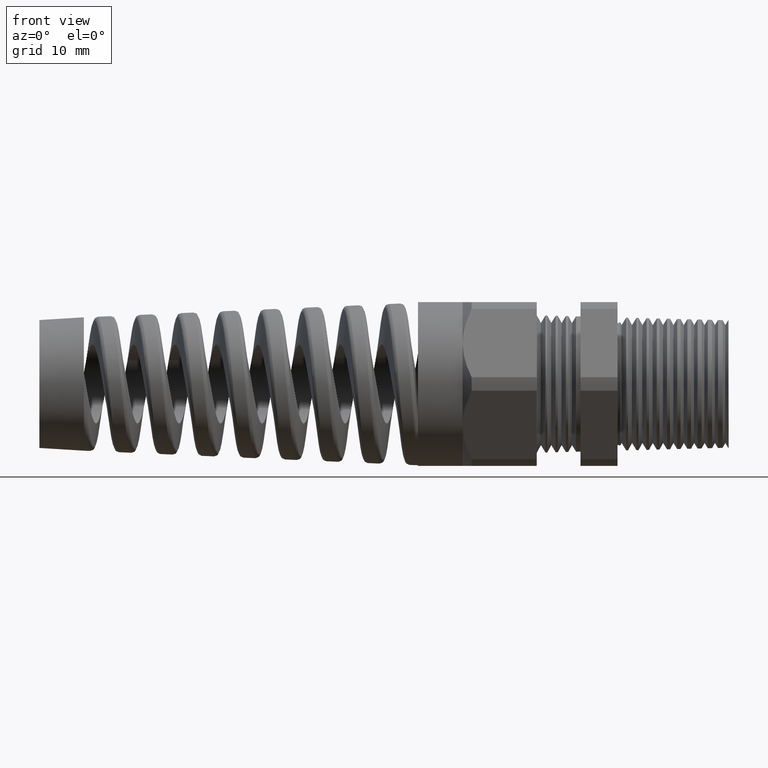
[diagram: clean part render]
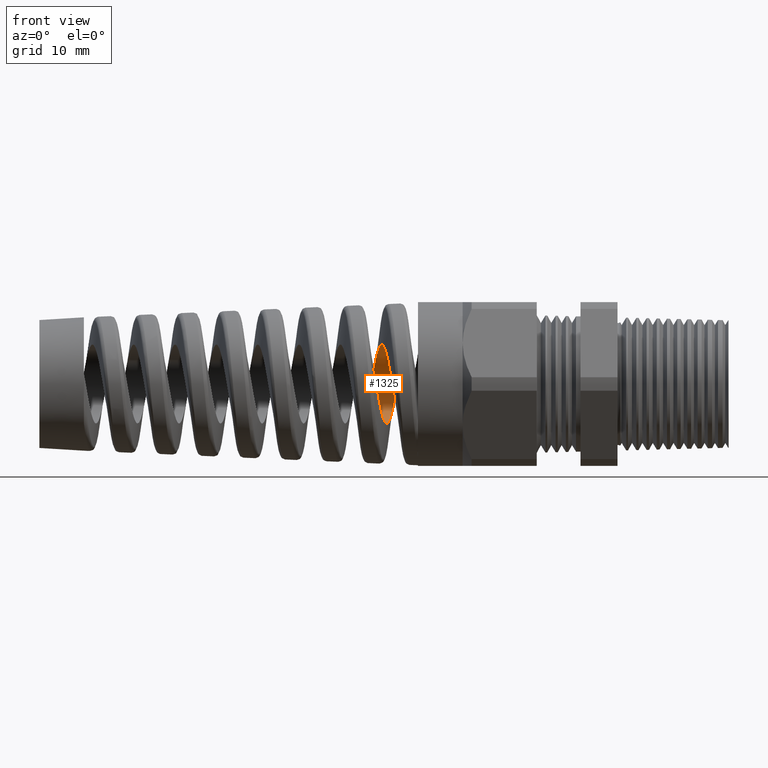
[diagram: same view with one face highlighted and labeled with its STEP entity id]
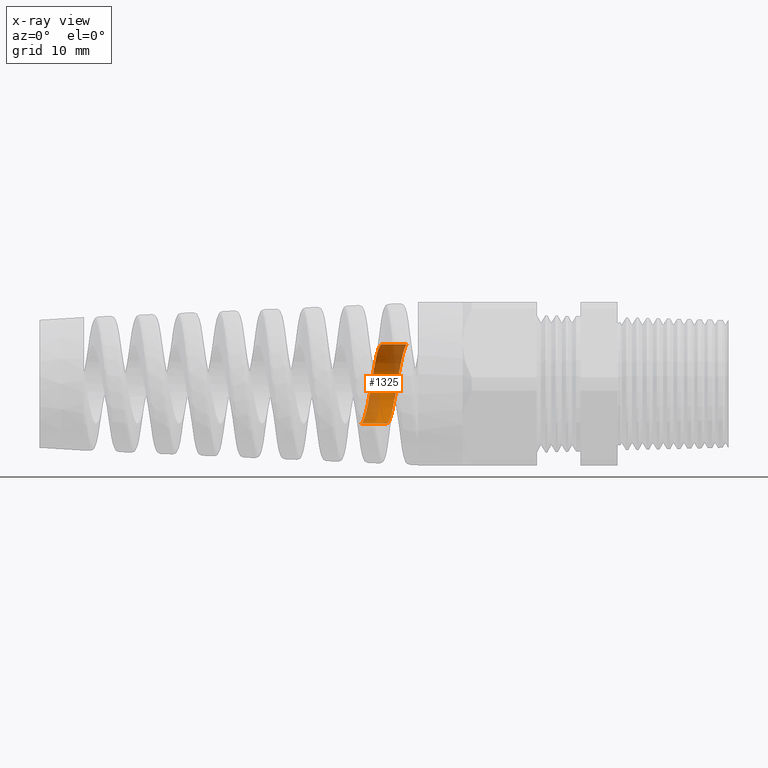
[diagram: x-ray of the same camera — body ghosted, the highlighted face saturated]
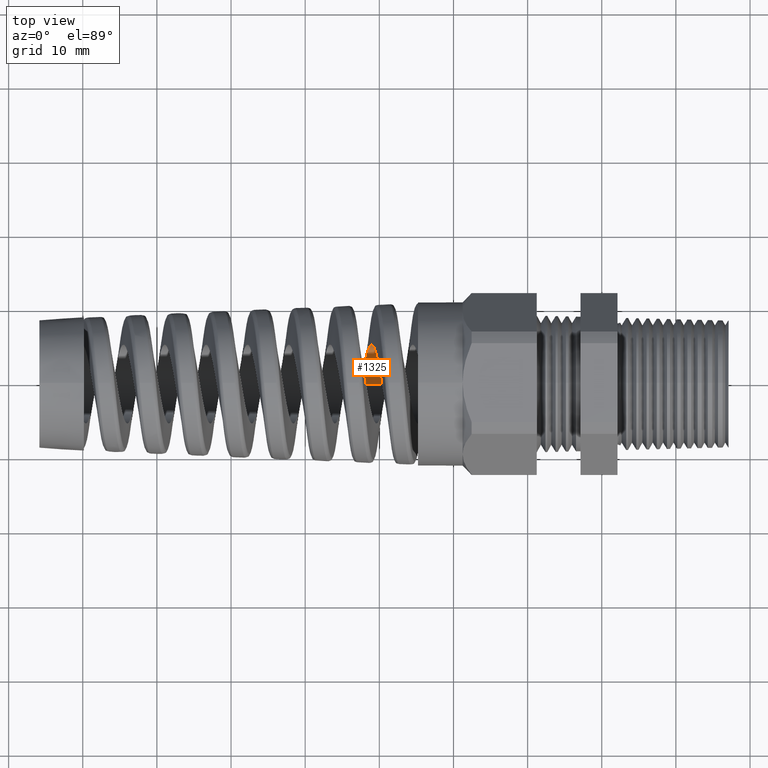
[diagram: same view with one face highlighted and labeled with its STEP entity id]
A machine part, front view. The second image highlights one B-rep face of the part: STEP entity #1325.
The next image is the same camera in x-ray: the body ghosted, the highlighted face saturated — about 42% of this face is hidden behind the body in this view.
A second angle (top view) of the same face is appended — the face is thin or edge-on in the first view.
In plain terms, the highlighted cylindrical surface (partial cylindrical patch) has radius 5.323 mm, axis along (1, 0, 0).
Its self-contained STEP definition (entity closure, byte-faithful):
#1231 = ORIENTED_EDGE ( 'NONE', *, *, #1232, .T. ) ;
#1232 = EDGE_CURVE ( 'NONE', #1362, #1261, #12393, .T. ) ;
#1233 = ORIENTED_EDGE ( 'NONE', *, *, #1356, .T. ) ;
#1234 = ORIENTED_EDGE ( 'NONE', *, *, #1235, .T. ) ;
#1235 = EDGE_CURVE ( 'NONE', #1354, #1365, #12371, .T. ) ;
#1261 = VERTEX_POINT ( 'NONE', #12272 ) ;
#1325 = ADVANCED_FACE ( 'NONE', ( #12828 ), #12827, .F. ) ;
#1326 = ORIENTED_EDGE ( 'NONE', *, *, #1364, .F. ) ;
#1337 = EDGE_LOOP ( 'NONE', ( #1326, #1231, #1233, #1234 ) ) ;
#1354 = VERTEX_POINT ( 'NONE', #12960 ) ;
#1356 = EDGE_CURVE ( 'NONE', #1261, #1354, #12868, .T. ) ;
#1362 = VERTEX_POINT ( 'NONE', #12856 ) ;
#1364 = EDGE_CURVE ( 'NONE', #1362, #1365, #12748, .T. ) ;
#1365 = VERTEX_POINT ( 'NONE', #12744 ) ;
#12227 = CARTESIAN_POINT ( 'NONE',  ( -1.425026679264245400, 5.654178357199256900E-013, 0.2095688967857589100 ) ) ;
#12228 = CARTESIAN_POINT ( 'NONE',  ( -1.426177024346293700, 0.006869529155837291900, 0.2095688967857403900 ) ) ;
#12229 = CARTESIAN_POINT ( 'NONE',  ( -1.427339270243934700, 0.01381151933879003900, 0.2092264085052636100 ) ) ;
#12230 = CARTESIAN_POINT ( 'NONE',  ( -1.429642647600193800, 0.02750323324157231300, 0.2078702004706709200 ) ) ;
#12231 = CARTESIAN_POINT ( 'NONE',  ( -1.430787256062858300, 0.03427380902071691700, 0.2068599700634496400 ) ) ;
#12232 = CARTESIAN_POINT ( 'NONE',  ( -1.434217055148523400, 0.05436193906012009400, 0.2028555566884549000 ) ) ;
#12272 = CARTESIAN_POINT ( 'NONE',  ( -1.671778080923350000, 8.699655306073648700E-014, -0.2095688967857589900 ) ) ;
#12297 = CARTESIAN_POINT ( 'NONE',  ( -1.605490689629441000, 0.1989029476925131000, 0.06741558379492747200 ) ) ;
#12298 = CARTESIAN_POINT ( 'NONE',  ( -1.600918206387149700, 0.1884195708334868400, 0.09276480402666800700 ) ) ;
#12299 = CARTESIAN_POINT ( 'NONE',  ( -1.598606479038349000, 0.1818473949581324600, 0.1050589154191855400 ) ) ;
#12300 = CARTESIAN_POINT ( 'NONE',  ( -1.594051114313801900, 0.1666649979920130600, 0.1277835247848362900 ) ) ;
#12301 = CARTESIAN_POINT ( 'NONE',  ( -1.591782148274616800, 0.1580061904672596400, 0.1383604769907204600 ) ) ;
#12302 = CARTESIAN_POINT ( 'NONE',  ( -1.587181016872799300, 0.1384977408692599200, 0.1578858878848484200 ) ) ;
#12303 = CARTESIAN_POINT ( 'NONE',  ( -1.584893914366563700, 0.1278298408336327700, 0.1666283185216033400 ) ) ;
#12304 = CARTESIAN_POINT ( 'NONE',  ( -1.580343622045095000, 0.1051340187525723200, 0.1818029230838232300 ) ) ;
#12305 = CARTESIAN_POINT ( 'NONE',  ( -1.578048683039817300, 0.09294803796055434200, 0.1883342619442788800 ) ) ;
#12306 = CARTESIAN_POINT ( 'NONE',  ( -1.573452574636207600, 0.06747860665969010500, 0.1988863233761429800 ) ) ;
#12307 = CARTESIAN_POINT ( 'NONE',  ( -1.571186621636625700, 0.05440038655867056300, 0.2028462451978104200 ) ) ;
#12308 = CARTESIAN_POINT ( 'NONE',  ( -1.566630056514892100, 0.02758784953448653900, 0.2081944086824753200 ) ) ;
#12309 = CARTESIAN_POINT ( 'NONE',  ( -1.564314619053096500, 0.01370529339063570100, 0.2095688967857374000 ) ) ;
#12310 = CARTESIAN_POINT ( 'NONE',  ( -1.562029579762008500, 3.268133231639253600E-013, 0.2095688967857588500 ) ) ;
#12333 = CARTESIAN_POINT ( 'NONE',  ( -1.436498496252214300, 0.06745797664002101100, 0.1988968916621188200 ) ) ;
#12334 = CARTESIAN_POINT ( 'NONE',  ( -1.441132671287576900, 0.09302097966982560100, 0.1883020166288300600 ) ) ;
#12335 = CARTESIAN_POINT ( 'NONE',  ( -1.443416470297157700, 0.1051028722523472000, 0.1818210733313999600 ) ) ;
#12336 = CARTESIAN_POINT ( 'NONE',  ( -1.446845244175082800, 0.1221289521291087500, 0.1704413096717306600 ) ) ;
#12337 = CARTESIAN_POINT ( 'NONE',  ( -1.447989555850496500, 0.1276249431658144600, 0.1663677187791451100 ) ) ;
#12338 = CARTESIAN_POINT ( 'NONE',  ( -1.450291779062830900, 0.1382495100473432600, 0.1576496652122154900 ) ) ;
#12339 = CARTESIAN_POINT ( 'NONE',  ( -1.451454856939002400, 0.1433991873666347100, 0.1529806704050886700 ) ) ;
#12340 = CARTESIAN_POINT ( 'NONE',  ( -1.454910109028866700, 0.1579799412997710800, 0.1383857668509548300 ) ) ;
#12341 = CARTESIAN_POINT ( 'NONE',  ( -1.457185094681569000, 0.1666360146936790300, 0.1278233004806707300 ) ) ;
#12342 = CARTESIAN_POINT ( 'NONE',  ( -1.461766823994791200, 0.1818423272913816100, 0.1050700982393083700 ) ) ;
#12343 = CARTESIAN_POINT ( 'NONE',  ( -1.464094277550549900, 0.1884205194690266900, 0.09275851641846207000 ) ) ;
#12344 = CARTESIAN_POINT ( 'NONE',  ( -1.468679077009105600, 0.1988841485630684600, 0.06746502779570486000 ) ) ;
#12345 = CARTESIAN_POINT ( 'NONE',  ( -1.470954129404669300, 0.2028519104851078400, 0.05439897153901466400 ) ) ;
#12346 = CARTESIAN_POINT ( 'NONE',  ( -1.474406673520530100, 0.2068781926189564600, 0.03417296763092386000 ) ) ;
#12347 = CARTESIAN_POINT ( 'NONE',  ( -1.475569097797814400, 0.2078972827737663500, 0.02729649503398195700 ) ) ;
#12348 = CARTESIAN_POINT ( 'NONE',  ( -1.477871739870179900, 0.2092392209768852200, 0.01361349443904121500 ) ) ;
#12349 = CARTESIAN_POINT ( 'NONE',  ( -1.479016709936337600, 0.2095704419199098400, 0.006779077178822279600 ) ) ;
#12350 = CARTESIAN_POINT ( 'NONE',  ( -1.482447272916573400, 0.2095657903006542800, -0.01370095220314460400 ) ) ;
#12351 = CARTESIAN_POINT ( 'NONE',  ( -1.484728941161735300, 0.2082398121197083000, -0.02733008295306295000 ) ) ;
#12352 = CARTESIAN_POINT ( 'NONE',  ( -1.489363914573998500, 0.2028356121254674400, -0.05448364194471277300 ) ) ;
#12353 = CARTESIAN_POINT ( 'NONE',  ( -1.491644400798767900, 0.1988452259926800600, -0.06757320294433288900 ) ) ;
#12354 = CARTESIAN_POINT ( 'NONE',  ( -1.495075331156243700, 0.1910083236214732400, -0.08649596867122569300 ) ) ;
#12355 = CARTESIAN_POINT ( 'NONE',  ( -1.496220293195962700, 0.1880852339718591400, -0.09268417323216345000 ) ) ;
#12356 = CARTESIAN_POINT ( 'NONE',  ( -1.498523439790020000, 0.1816046057393186900, -0.1048149721187066300 ) ) ;
#12357 = CARTESIAN_POINT ( 'NONE',  ( -1.499685857771988000, 0.1780303622940957500, -0.1107769703074779100 ) ) ;
#12358 = CARTESIAN_POINT ( 'NONE',  ( -1.503137253045981400, 0.1665708729082435400, -0.1279146785747003200 ) ) ;
#12359 = CARTESIAN_POINT ( 'NONE',  ( -1.505412309858421300, 0.1579040730483448900, -0.1384659322049803800 ) ) ;
#12360 = CARTESIAN_POINT ( 'NONE',  ( -1.509998546501679000, 0.1385500932193347000, -0.1578302326411670800 ) ) ;
#12361 = CARTESIAN_POINT ( 'NONE',  ( -1.512325314523684300, 0.1277595393199738000, -0.1666846919577498800 ) ) ;
#12362 = CARTESIAN_POINT ( 'NONE',  ( -1.516906144692002900, 0.1050050408718632700, -0.1818797069818408100 ) ) ;
#12363 = CARTESIAN_POINT ( 'NONE',  ( -1.519181245411670700, 0.09296401342658411300, -0.1883244655253379600 ) ) ;
#12364 = CARTESIAN_POINT ( 'NONE',  ( -1.522638214906591800, 0.07389984281191973300, -0.1962275672129663000 ) ) ;
#12365 = CARTESIAN_POINT ( 'NONE',  ( -1.523801181953852600, 0.06735563748353222400, -0.1985687085705229400 ) ) ;
#12366 = CARTESIAN_POINT ( 'NONE',  ( -1.526102341429806700, 0.05420697993977068700, -0.2025534923174310800 ) ) ;
#12367 = CARTESIAN_POINT ( 'NONE',  ( -1.527246314596134600, 0.04757137257206912200, -0.2042123420770117500 ) ) ;
#12368 = CARTESIAN_POINT ( 'NONE',  ( -1.530674858648475700, 0.02748682551993981600, -0.2082065597014473300 ) ) ;
#12369 = CARTESIAN_POINT ( 'NONE',  ( -1.532960981685524100, 0.01382940291304644500, -0.2095688967857596800 ) ) ;
#12370 = CARTESIAN_POINT ( 'NONE',  ( -1.535277355391548200, -1.132569754638954700E-014, -0.2095688967857589900 ) ) ;
#12371 = B_SPLINE_CURVE_WITH_KNOTS ( 'NONE', 3,
 ( #12370, #12369, #12368, #12367, #12366, #12365, #12364, #12363, #12362, #12361, #12360, #12359, #12358, #12357, #12356, #12355, #12354, #12353, #12352, #12351, #12350, #12349, #12348, #12347, #12346, #12345, #12344, #12343, #12342, #12341, #12340, #12339, #12338, #12337, #12336, #12335, #12334, #12333, #12232, #12231, #12230, #12229, #12228, #12227 ),
 .UNSPECIFIED., .F., .F.,
 ( 4, 2, 2, 2, 2, 2, 2, 2, 2, 2, 2, 2, 2, 2, 2, 2, 2, 2, 2, 2, 2, 4 ),
 ( 0.2462005301356777800, 0.2472551177142528500, 0.2477824115035403800, 0.2483097052928279500, 0.2493642928714030200, 0.2504188804499781200, 0.2514734680285531900, 0.2520007618178407000, 0.2525280556071282700, 0.2535826431857033400, 0.2546372307642784100, 0.2551645245535659700, 0.2556918183428534800, 0.2567464059214285600, 0.2578009935000036800, 0.2588555810785787600, 0.2593828748678662600, 0.2599101686571538300, 0.2609647562357289000, 0.2620193438143040300, 0.2625466376035915400, 0.2630739313928791000 ),
 .UNSPECIFIED. ) ;
#12373 = CARTESIAN_POINT ( 'NONE',  ( -1.671778080923350000, 8.699655306073648700E-014, -0.2095688967857589900 ) ) ;
#12374 = CARTESIAN_POINT ( 'NONE',  ( -1.669476781946067200, 0.01380924503996520400, -0.2095688967857532200 ) ) ;
#12375 = CARTESIAN_POINT ( 'NONE',  ( -1.667208767161888900, 0.02741451356908929500, -0.2082167735660323300 ) ) ;
#12376 = CARTESIAN_POINT ( 'NONE',  ( -1.662652498235099000, 0.05421584219000259000, -0.2028951029574319600 ) ) ;
#12377 = CARTESIAN_POINT ( 'NONE',  ( -1.660340802542734200, 0.06755164034741191500, -0.1988571736931225600 ) ) ;
#12378 = CARTESIAN_POINT ( 'NONE',  ( -1.655767426978094900, 0.09290391743386844400, -0.1883514315535823300 ) ) ;
#12379 = CARTESIAN_POINT ( 'NONE',  ( -1.653503106353228600, 0.1049448709023304300, -0.1819164580330471200 ) ) ;
#12380 = CARTESIAN_POINT ( 'NONE',  ( -1.648931679665044800, 0.1277473006709132200, -0.1666962831118062600 ) ) ;
#12381 = CARTESIAN_POINT ( 'NONE',  ( -1.646617204623924000, 0.1385290638554061700, -0.1578469543320753500 ) ) ;
#12382 = CARTESIAN_POINT ( 'NONE',  ( -1.642061174034486400, 0.1578590271573523700, -0.1385153062643323700 ) ) ;
#12383 = CARTESIAN_POINT ( 'NONE',  ( -1.639795084476759500, 0.1665393441269375200, -0.1279604782265229800 ) ) ;
#12384 = CARTESIAN_POINT ( 'NONE',  ( -1.635196988112573600, 0.1818690295894375400, -0.1050375799720618000 ) ) ;
#12385 = CARTESIAN_POINT ( 'NONE',  ( -1.632903922459268700, 0.1883745179713394700, -0.09284666808730048000 ) ) ;
#12386 = CARTESIAN_POINT ( 'NONE',  ( -1.628353764119916800, 0.1988271702215551600, -0.06762558079260046200 ) ) ;
#12387 = CARTESIAN_POINT ( 'NONE',  ( -1.626065350947303800, 0.2028486460454481700, -0.05442326007971201600 ) ) ;
#12388 = CARTESIAN_POINT ( 'NONE',  ( -1.621464906932750700, 0.2082326923370486100, -0.02736074345187936700 ) ) ;
#12389 = CARTESIAN_POINT ( 'NONE',  ( -1.619196520860984600, 0.2095629069998002900, -0.01375767409680429800 ) ) ;
#12390 = CARTESIAN_POINT ( 'NONE',  ( -1.614640910907417300, 0.2095748465814753800, 0.01357458165513372600 ) ) ;
#12391 = CARTESIAN_POINT ( 'NONE',  ( -1.612328760127626800, 0.2082152326845640400, 0.02745154902633929700 ) ) ;
#12392 = CARTESIAN_POINT ( 'NONE',  ( -1.607756794707435200, 0.2028625595847646000, 0.05435027676608889700 ) ) ;
#12393 = B_SPLINE_CURVE_WITH_KNOTS ( 'NONE', 3,
 ( #12310, #12309, #12308, #12307, #12306, #12305, #12304, #12303, #12302, #12301, #12300, #12299, #12298, #12297, #12392, #12391, #12390, #12389, #12388, #12387, #12386, #12385, #12384, #12383, #12382, #12381, #12380, #12379, #12378, #12377, #12376, #12375, #12374, #12373 ),
 .UNSPECIFIED., .F., .F.,
 ( 4, 2, 2, 2, 2, 2, 2, 2, 2, 2, 2, 2, 2, 2, 2, 2, 4 ),
 ( 0.04182507713772343200, 0.04287959823095585000, 0.04393411932418826700, 0.04498864041742068500, 0.04604316151065310200, 0.04709768260388552000, 0.04815220369711793700, 0.04920672479035035500, 0.05026124588358277200, 0.05131576697681518300, 0.05237028807004760100, 0.05342480916328001800, 0.05447933025651243600, 0.05553385134974485300, 0.05658837244297726400, 0.05764289353620968800, 0.05869741462944209900 ),
 .UNSPECIFIED. ) ;
#12744 = CARTESIAN_POINT ( 'NONE',  ( -1.425026679264245400, 5.654178357199256900E-013, 0.2095688967857589100 ) ) ;
#12745 = DIRECTION ( 'NONE',  ( 1.000000000000000000, 0.0000000000000000000, 0.0000000000000000000 ) ) ;
#12746 = VECTOR ( 'NONE', #12745, 39.37007874015748100 ) ;
#12747 = CARTESIAN_POINT ( 'NONE',  ( 0.0000000000000000000, 2.566478786495217000E-017, 0.2095688967857589100 ) ) ;
#12748 = LINE ( 'NONE', #12747, #12746 ) ;
#12822 = DIRECTION ( 'NONE',  ( 0.0000000000000000000, 0.0000000000000000000, -1.000000000000000000 ) ) ;
#12823 = DIRECTION ( 'NONE',  ( 1.000000000000000000, 0.0000000000000000000, 0.0000000000000000000 ) ) ;
#12824 = CARTESIAN_POINT ( 'NONE',  ( 0.0000000000000000000, 0.0000000000000000000, 0.0000000000000000000 ) ) ;
#12825 = AXIS2_PLACEMENT_3D ( 'NONE', #12824, #12823, #12822 ) ;
#12827 = CYLINDRICAL_SURFACE ( 'NONE', #12825, 0.2095688967857589100 ) ;
#12828 = FACE_OUTER_BOUND ( 'NONE', #1337, .T. ) ;
#12856 = CARTESIAN_POINT ( 'NONE',  ( -1.562029579762008500, 3.268133231639253600E-013, 0.2095688967857588500 ) ) ;
#12865 = DIRECTION ( 'NONE',  ( 1.000000000000000000, 0.0000000000000000000, 0.0000000000000000000 ) ) ;
#12866 = VECTOR ( 'NONE', #12865, 39.37007874015748100 ) ;
#12867 = CARTESIAN_POINT ( 'NONE',  ( 0.0000000000000000000, 0.0000000000000000000, -0.2095688967857589100 ) ) ;
#12868 = LINE ( 'NONE', #12867, #12866 ) ;
#12960 = CARTESIAN_POINT ( 'NONE',  ( -1.535277355391548200, -1.132569754638954700E-014, -0.2095688967857589900 ) ) ;